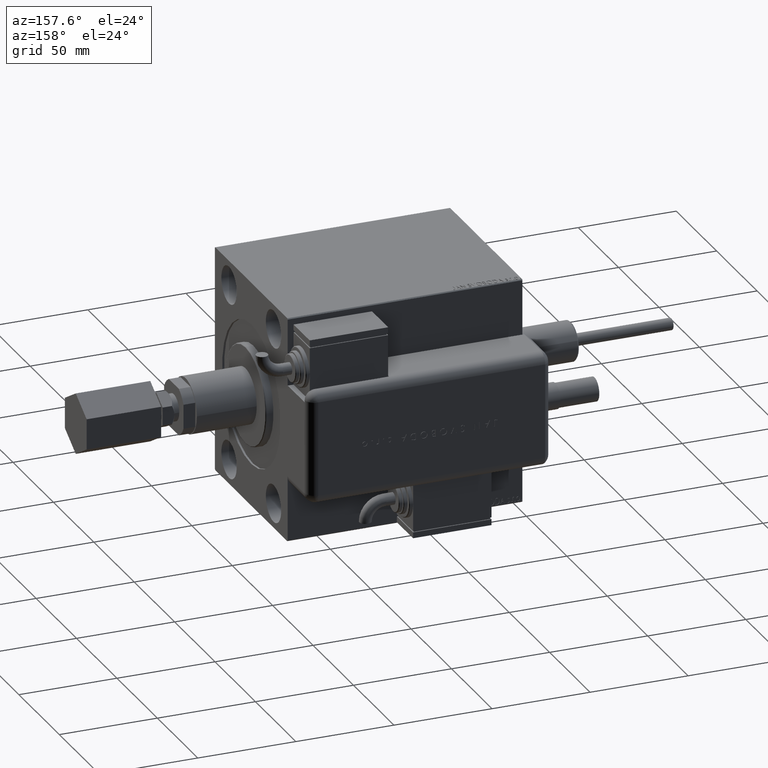
[diagram: clean part render]
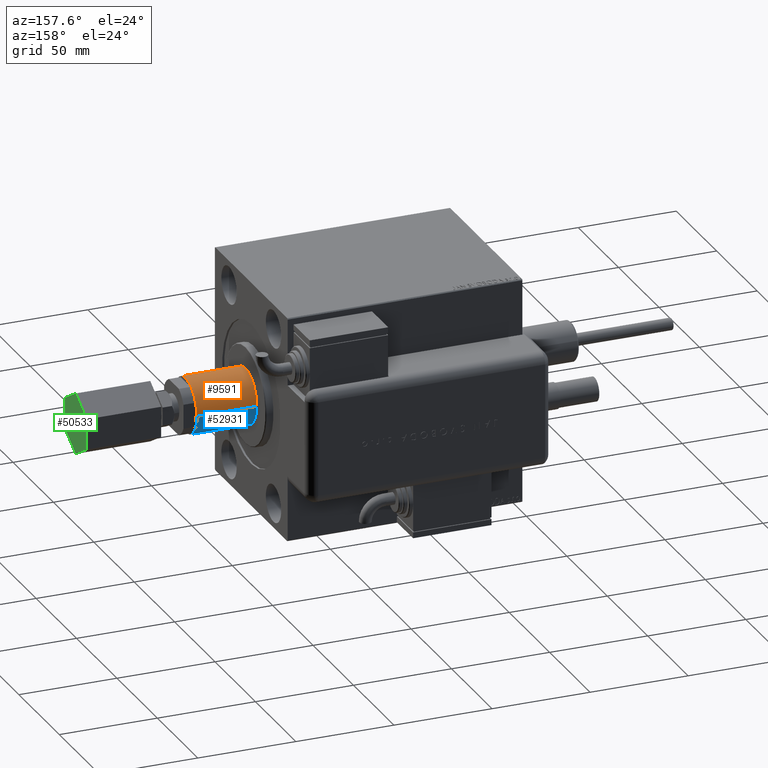
[diagram: same view with three faces highlighted in distinct colors, each labeled with its STEP entity id]
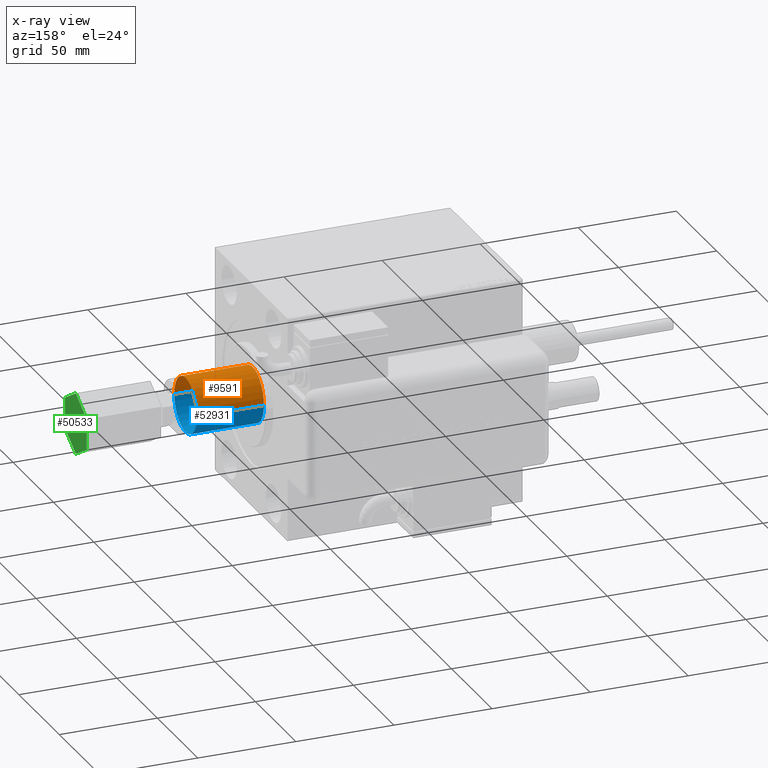
[diagram: x-ray of the same camera — body ghosted, the three highlighted faces saturated]
A machine part, auxiliary view with three faces highlighted in distinct colors.
The next image is the same camera in x-ray (body ghosted, the three faces saturated) — at least one of them is partly hidden behind the body in this view.
Their STEP definitions:

[orange] entity #9591 — the highlighted cylindrical surface (edge-blend (fillet) strip) has radius 14 mm, axis along (-1, 0, 0).
#708 = CARTESIAN_POINT ( 'NONE',  ( 34.50000000000000000, 1.714505518806294441E-15, -13.99999999999999822 ) ) ;
#764 = DIRECTION ( 'NONE',  ( 0.000000000000000000, 0.000000000000000000, -1.000000000000000000 ) ) ;
#2137 = CARTESIAN_POINT ( 'NONE',  ( 0.3000000000000085931, 1.714505518806294441E-15, -13.99999999999999822 ) ) ;
#2493 = CYLINDRICAL_SURFACE ( 'NONE', #39374, 13.99999999999999822 ) ;
#3095 = CARTESIAN_POINT ( 'NONE',  ( 34.50000000000000000, 0.000000000000000000, 0.000000000000000000 ) ) ;
#4798 = CARTESIAN_POINT ( 'NONE',  ( 0.3000000000000085931, 0.000000000000000000, 13.99999999999999822 ) ) ;
#9591 = ADVANCED_FACE ( 'NONE', ( #35237 ), #2493, .T. ) ;
#12745 = VECTOR ( 'NONE', #15543, 1000.000000000000000 ) ;
#15237 = CARTESIAN_POINT ( 'NONE',  ( 34.50000000000000000, 0.000000000000000000, 13.99999999999999822 ) ) ;
#15543 = DIRECTION ( 'NONE',  ( -1.000000000000000000, -0.000000000000000000, -0.000000000000000000 ) ) ;
#19222 = CARTESIAN_POINT ( 'NONE',  ( 34.50000000000000000, 0.000000000000000000, 0.000000000000000000 ) ) ;
#19531 = ORIENTED_EDGE ( 'NONE', *, *, #52213, .T. ) ;
#20046 = CIRCLE ( 'NONE', #58500, 13.99999999999999822 ) ;
#20527 = ORIENTED_EDGE ( 'NONE', *, *, #42806, .T. ) ;
#21737 = VERTEX_POINT ( 'NONE', #4798 ) ;
#22327 = VERTEX_POINT ( 'NONE', #36388 ) ;
#23117 = LINE ( 'NONE', #32984, #35653 ) ;
#24497 = LINE ( 'NONE', #15237, #12745 ) ;
#25601 = VERTEX_POINT ( 'NONE', #2137 ) ;
#30451 = EDGE_CURVE ( 'NONE', #22327, #38211, #53844, .T. ) ;
#32984 = CARTESIAN_POINT ( 'NONE',  ( 34.50000000000000000, 1.714505518806294441E-15, -13.99999999999999822 ) ) ;
#35237 = FACE_OUTER_BOUND ( 'NONE', #58132, .T. ) ;
#35653 = VECTOR ( 'NONE', #50924, 1000.000000000000000 ) ;
#36388 = CARTESIAN_POINT ( 'NONE',  ( 34.50000000000000000, 0.000000000000000000, 13.99999999999999822 ) ) ;
#36410 = ORIENTED_EDGE ( 'NONE', *, *, #30451, .F. ) ;
#36691 = DIRECTION ( 'NONE',  ( 1.000000000000000000, -0.000000000000000000, -0.000000000000000000 ) ) ;
#38211 = VERTEX_POINT ( 'NONE', #708 ) ;
#39374 = AXIS2_PLACEMENT_3D ( 'NONE', #3095, #59354, #54122 ) ;
#42806 = EDGE_CURVE ( 'NONE', #22327, #21737, #24497, .T. ) ;
#43101 = CARTESIAN_POINT ( 'NONE',  ( 0.3000000000000085931, 0.000000000000000000, 0.000000000000000000 ) ) ;
#46943 = AXIS2_PLACEMENT_3D ( 'NONE', #19222, #56920, #47343 ) ;
#47343 = DIRECTION ( 'NONE',  ( 0.000000000000000000, 0.000000000000000000, -1.000000000000000000 ) ) ;
#48619 = EDGE_CURVE ( 'NONE', #38211, #25601, #23117, .T. ) ;
#50924 = DIRECTION ( 'NONE',  ( -1.000000000000000000, -0.000000000000000000, -0.000000000000000000 ) ) ;
#52213 = EDGE_CURVE ( 'NONE', #21737, #25601, #20046, .T. ) ;
#53844 = CIRCLE ( 'NONE', #46943, 13.99999999999999822 ) ;
#54122 = DIRECTION ( 'NONE',  ( 0.000000000000000000, 0.000000000000000000, 1.000000000000000000 ) ) ;
#56920 = DIRECTION ( 'NONE',  ( 1.000000000000000000, 0.000000000000000000, 0.000000000000000000 ) ) ;
#58132 = EDGE_LOOP ( 'NONE', ( #58584, #36410, #20527, #19531 ) ) ;
#58500 = AXIS2_PLACEMENT_3D ( 'NONE', #43101, #36691, #764 ) ;
#58584 = ORIENTED_EDGE ( 'NONE', *, *, #48619, .F. ) ;
#59354 = DIRECTION ( 'NONE',  ( -1.000000000000000000, -0.000000000000000000, -0.000000000000000000 ) ) ;

[blue] entity #52931 — the highlighted cylindrical surface (edge-blend (fillet) strip) has radius 14 mm, axis along (-1, 0, 0).
#708 = CARTESIAN_POINT ( 'NONE',  ( 34.50000000000000000, 1.714505518806294441E-15, -13.99999999999999822 ) ) ;
#893 = CARTESIAN_POINT ( 'NONE',  ( 0.3000000000000085931, 0.000000000000000000, 0.000000000000000000 ) ) ;
#1032 = EDGE_CURVE ( 'NONE', #38211, #22327, #32265, .T. ) ;
#2137 = CARTESIAN_POINT ( 'NONE',  ( 0.3000000000000085931, 1.714505518806294441E-15, -13.99999999999999822 ) ) ;
#2737 = DIRECTION ( 'NONE',  ( 0.000000000000000000, 0.000000000000000000, 1.000000000000000000 ) ) ;
#4798 = CARTESIAN_POINT ( 'NONE',  ( 0.3000000000000085931, 0.000000000000000000, 13.99999999999999822 ) ) ;
#6446 = DIRECTION ( 'NONE',  ( 1.000000000000000000, -0.000000000000000000, -0.000000000000000000 ) ) ;
#7076 = CARTESIAN_POINT ( 'NONE',  ( 34.50000000000000000, 0.000000000000000000, 0.000000000000000000 ) ) ;
#11309 = EDGE_LOOP ( 'NONE', ( #26716, #26951, #43911, #20460 ) ) ;
#12634 = DIRECTION ( 'NONE',  ( -1.000000000000000000, -0.000000000000000000, -0.000000000000000000 ) ) ;
#12745 = VECTOR ( 'NONE', #15543, 1000.000000000000000 ) ;
#13233 = DIRECTION ( 'NONE',  ( 0.000000000000000000, 0.000000000000000000, -1.000000000000000000 ) ) ;
#15237 = CARTESIAN_POINT ( 'NONE',  ( 34.50000000000000000, 0.000000000000000000, 13.99999999999999822 ) ) ;
#15543 = DIRECTION ( 'NONE',  ( -1.000000000000000000, -0.000000000000000000, -0.000000000000000000 ) ) ;
#16506 = AXIS2_PLACEMENT_3D ( 'NONE', #16952, #55570, #13233 ) ;
#16952 = CARTESIAN_POINT ( 'NONE',  ( 34.50000000000000000, 0.000000000000000000, 0.000000000000000000 ) ) ;
#20460 = ORIENTED_EDGE ( 'NONE', *, *, #42806, .F. ) ;
#21737 = VERTEX_POINT ( 'NONE', #4798 ) ;
#22327 = VERTEX_POINT ( 'NONE', #36388 ) ;
#23117 = LINE ( 'NONE', #32984, #35653 ) ;
#24497 = LINE ( 'NONE', #15237, #12745 ) ;
#25299 = DIRECTION ( 'NONE',  ( 0.000000000000000000, 0.000000000000000000, -1.000000000000000000 ) ) ;
#25601 = VERTEX_POINT ( 'NONE', #2137 ) ;
#26716 = ORIENTED_EDGE ( 'NONE', *, *, #1032, .F. ) ;
#26951 = ORIENTED_EDGE ( 'NONE', *, *, #48619, .T. ) ;
#28931 = AXIS2_PLACEMENT_3D ( 'NONE', #7076, #12634, #2737 ) ;
#30835 = EDGE_CURVE ( 'NONE', #25601, #21737, #55860, .T. ) ;
#32144 = AXIS2_PLACEMENT_3D ( 'NONE', #893, #6446, #25299 ) ;
#32265 = CIRCLE ( 'NONE', #16506, 13.99999999999999822 ) ;
#32984 = CARTESIAN_POINT ( 'NONE',  ( 34.50000000000000000, 1.714505518806294441E-15, -13.99999999999999822 ) ) ;
#35653 = VECTOR ( 'NONE', #50924, 1000.000000000000000 ) ;
#36388 = CARTESIAN_POINT ( 'NONE',  ( 34.50000000000000000, 0.000000000000000000, 13.99999999999999822 ) ) ;
#38211 = VERTEX_POINT ( 'NONE', #708 ) ;
#42806 = EDGE_CURVE ( 'NONE', #22327, #21737, #24497, .T. ) ;
#43911 = ORIENTED_EDGE ( 'NONE', *, *, #30835, .T. ) ;
#48619 = EDGE_CURVE ( 'NONE', #38211, #25601, #23117, .T. ) ;
#50924 = DIRECTION ( 'NONE',  ( -1.000000000000000000, -0.000000000000000000, -0.000000000000000000 ) ) ;
#52931 = ADVANCED_FACE ( 'NONE', ( #54972 ), #54671, .T. ) ;
#54671 = CYLINDRICAL_SURFACE ( 'NONE', #28931, 13.99999999999999822 ) ;
#54972 = FACE_OUTER_BOUND ( 'NONE', #11309, .T. ) ;
#55570 = DIRECTION ( 'NONE',  ( 1.000000000000000000, 0.000000000000000000, 0.000000000000000000 ) ) ;
#55860 = CIRCLE ( 'NONE', #32144, 13.99999999999999822 ) ;

[green] entity #50533 — the highlighted planar face has unit normal (1, -0, -0).
#573 = ORIENTED_EDGE ( 'NONE', *, *, #37754, .T. ) ;
#1017 = LINE ( 'NONE', #33159, #55225 ) ;
#6980 = ORIENTED_EDGE ( 'NONE', *, *, #57532, .T. ) ;
#7753 = EDGE_CURVE ( 'NONE', #21406, #14209, #1017, .T. ) ;
#8102 = CARTESIAN_POINT ( 'NONE',  ( 90.50000000000000000, -15.58845726811989607, -5.983477626642369342E-15 ) ) ;
#9401 = DIRECTION ( 'NONE',  ( 1.000000000000000000, 0.000000000000000000, 0.000000000000000000 ) ) ;
#10279 = CARTESIAN_POINT ( 'NONE',  ( 90.50000000000000000, 7.794228634059952476, -13.49999999999999822 ) ) ;
#10755 = LINE ( 'NONE', #45330, #41176 ) ;
#12274 = CARTESIAN_POINT ( 'NONE',  ( 90.50000000000000000, 7.794228634059952476, -13.49999999999999822 ) ) ;
#13712 = EDGE_LOOP ( 'NONE', ( #47867, #573, #37595, #60682, #48921, #6980 ) ) ;
#14067 = AXIS2_PLACEMENT_3D ( 'NONE', #41845, #9401, #40386 ) ;
#14209 = VERTEX_POINT ( 'NONE', #16812 ) ;
#14319 = LINE ( 'NONE', #10279, #56122 ) ;
#16812 = CARTESIAN_POINT ( 'NONE',  ( 90.50000000000000000, -15.58845726811989607, -5.983477626642369342E-15 ) ) ;
#18243 = VERTEX_POINT ( 'NONE', #40683 ) ;
#18705 = DIRECTION ( 'NONE',  ( 0.000000000000000000, -1.000000000000000000, -1.112825628694191866E-16 ) ) ;
#21315 = EDGE_CURVE ( 'NONE', #18243, #34844, #34290, .T. ) ;
#21406 = VERTEX_POINT ( 'NONE', #60198 ) ;
#21541 = DIRECTION ( 'NONE',  ( 0.000000000000000000, 1.000000000000000000, 2.225651257388383239E-16 ) ) ;
#23010 = PLANE ( 'NONE',  #14067 ) ;
#26223 = CARTESIAN_POINT ( 'NONE',  ( 90.50000000000000000, 15.58845726811989252, 0.000000000000000000 ) ) ;
#27522 = CARTESIAN_POINT ( 'NONE',  ( 90.50000000000000000, -7.794228634059953364, -13.50000000000000178 ) ) ;
#31956 = EDGE_CURVE ( 'NONE', #34844, #21406, #60715, .T. ) ;
#33159 = CARTESIAN_POINT ( 'NONE',  ( 90.50000000000000000, -7.794228634059949812, 13.49999999999999822 ) ) ;
#34290 = LINE ( 'NONE', #26223, #58488 ) ;
#34844 = VERTEX_POINT ( 'NONE', #56646 ) ;
#35607 = LINE ( 'NONE', #8102, #41775 ) ;
#36572 = VERTEX_POINT ( 'NONE', #12274 ) ;
#37595 = ORIENTED_EDGE ( 'NONE', *, *, #21315, .T. ) ;
#37754 = EDGE_CURVE ( 'NONE', #36572, #18243, #14319, .T. ) ;
#38727 = EDGE_CURVE ( 'NONE', #43153, #36572, #10755, .T. ) ;
#40386 = DIRECTION ( 'NONE',  ( 0.000000000000000000, 0.000000000000000000, -1.000000000000000000 ) ) ;
#40683 = CARTESIAN_POINT ( 'NONE',  ( 90.50000000000000000, 15.58845726811989252, 0.000000000000000000 ) ) ;
#41176 = VECTOR ( 'NONE', #21541, 1000.000000000000000 ) ;
#41775 = VECTOR ( 'NONE', #49842, 1000.000000000000114 ) ;
#41845 = CARTESIAN_POINT ( 'NONE',  ( 90.50000000000000000, 0.000000000000000000, 0.000000000000000000 ) ) ;
#42745 = DIRECTION ( 'NONE',  ( 0.000000000000000000, -0.4999999999999997780, -0.8660254037844387076 ) ) ;
#43153 = VERTEX_POINT ( 'NONE', #27522 ) ;
#45330 = CARTESIAN_POINT ( 'NONE',  ( 90.50000000000000000, -7.794228634059953364, -13.50000000000000178 ) ) ;
#46820 = CARTESIAN_POINT ( 'NONE',  ( 90.50000000000000000, 7.794228634059951588, 13.50000000000000000 ) ) ;
#47867 = ORIENTED_EDGE ( 'NONE', *, *, #38727, .T. ) ;
#48921 = ORIENTED_EDGE ( 'NONE', *, *, #7753, .T. ) ;
#49842 = DIRECTION ( 'NONE',  ( 0.000000000000000000, 0.4999999999999998335, -0.8660254037844387076 ) ) ;
#50533 = ADVANCED_FACE ( 'NONE', ( #60390 ), #23010, .T. ) ;
#53468 = DIRECTION ( 'NONE',  ( 0.000000000000000000, -0.4999999999999996669, 0.8660254037844388186 ) ) ;
#55225 = VECTOR ( 'NONE', #42745, 1000.000000000000227 ) ;
#56122 = VECTOR ( 'NONE', #56657, 1000.000000000000114 ) ;
#56646 = CARTESIAN_POINT ( 'NONE',  ( 90.50000000000000000, 7.794228634059951588, 13.50000000000000000 ) ) ;
#56657 = DIRECTION ( 'NONE',  ( 0.000000000000000000, 0.4999999999999996669, 0.8660254037844388186 ) ) ;
#57532 = EDGE_CURVE ( 'NONE', #14209, #43153, #35607, .T. ) ;
#57857 = VECTOR ( 'NONE', #18705, 1000.000000000000000 ) ;
#58488 = VECTOR ( 'NONE', #53468, 1000.000000000000000 ) ;
#60198 = CARTESIAN_POINT ( 'NONE',  ( 90.50000000000000000, -7.794228634059949812, 13.49999999999999822 ) ) ;
#60390 = FACE_OUTER_BOUND ( 'NONE', #13712, .T. ) ;
#60682 = ORIENTED_EDGE ( 'NONE', *, *, #31956, .T. ) ;
#60715 = LINE ( 'NONE', #46820, #57857 ) ;